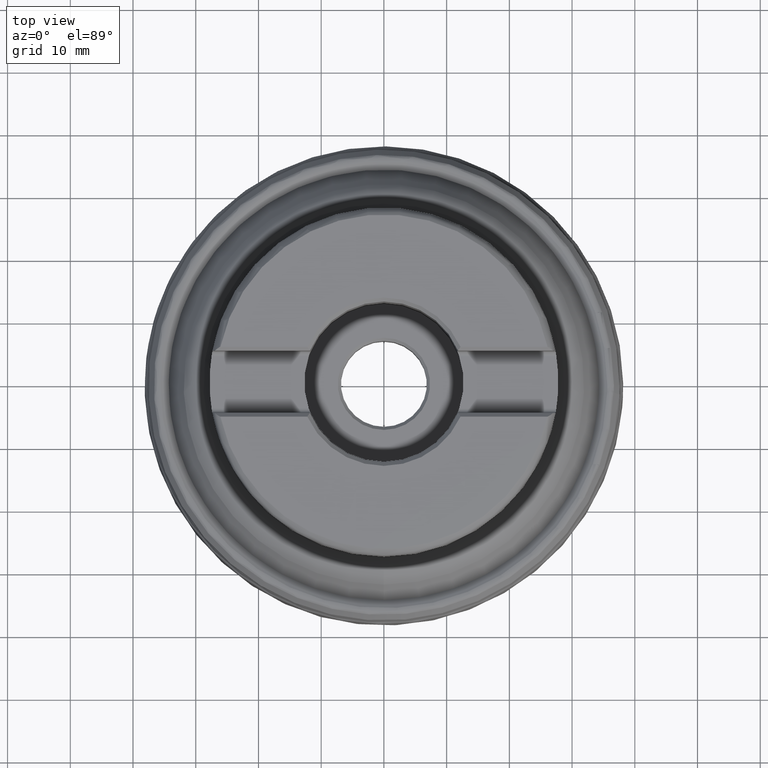
[diagram: clean part render]
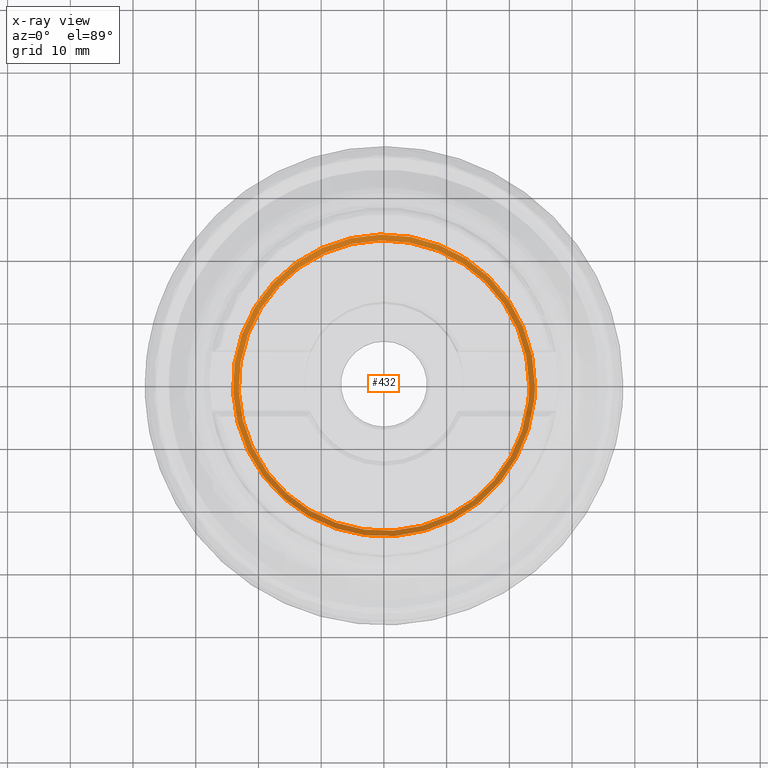
[diagram: x-ray — body ghosted, one internal face saturated and labeled with its STEP entity id]
A machine part, top view, then the same camera in x-ray: the body is ghosted and one INTERNAL B-rep face — a face not visible from any outside direction — is saturated and labeled: STEP entity #432.
In plain terms, the highlighted face is a SurfaceOfRevolution surface.
Its self-contained STEP definition (entity closure, byte-faithful):
#129=SURFACE_OF_REVOLUTION('',#221,#150);
#150=AXIS1_PLACEMENT('',#2529,#1599);
#221=LINE('',#2528,#248);
#248=VECTOR('',#1598,1.79261888832974);
#351=FACE_BOUND('',#599,.T.);
#352=FACE_BOUND('',#600,.T.);
#432=ADVANCED_FACE('',(#351,#352),#129,.F.);
#599=EDGE_LOOP('',(#903));
#600=EDGE_LOOP('',(#904));
#667=CIRCLE('',#1313,24.0684443821501);
#668=CIRCLE('',#1314,23.1660503749877);
#903=ORIENTED_EDGE('',*,*,#1125,.T.);
#904=ORIENTED_EDGE('',*,*,#1126,.F.);
#1005=VERTEX_POINT('',#2519);
#1006=VERTEX_POINT('',#2527);
#1125=EDGE_CURVE('',#1005,#1005,#667,.T.);
#1126=EDGE_CURVE('',#1006,#1006,#668,.T.);
#1313=AXIS2_PLACEMENT_3D('',#2518,#1593,#1594);
#1314=AXIS2_PLACEMENT_3D('',#2526,#1596,#1597);
#1593=DIRECTION('',(0.,0.,1.));
#1594=DIRECTION('',(1.,0.,0.));
#1596=DIRECTION('',(0.,0.,1.));
#1597=DIRECTION('',(1.,0.,0.));
#1598=DIRECTION('',(0.522249724299425,0.146593322367261,0.840098579517013));
#1599=DIRECTION('',(0.,0.,1.));
#2518=CARTESIAN_POINT('',(0.,0.,9.01120888059047));
#2519=CARTESIAN_POINT('',(24.0684443821501,0.,9.01120888059047));
#2526=CARTESIAN_POINT('',(0.,0.,7.50523228357408));
#2527=CARTESIAN_POINT('',(23.1660503749877,0.,7.50523228357408));
#2528=CARTESIAN_POINT('',(23.0109010731212,-2.67662507264239,7.50523228357408));
#2529=CARTESIAN_POINT('',(0.,0.,0.));